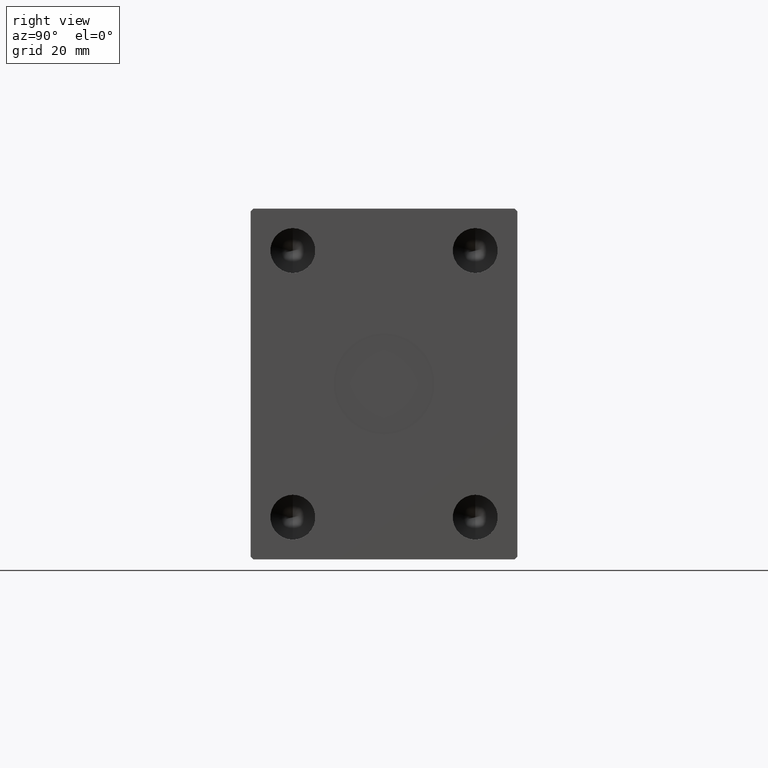
[diagram: clean part render]
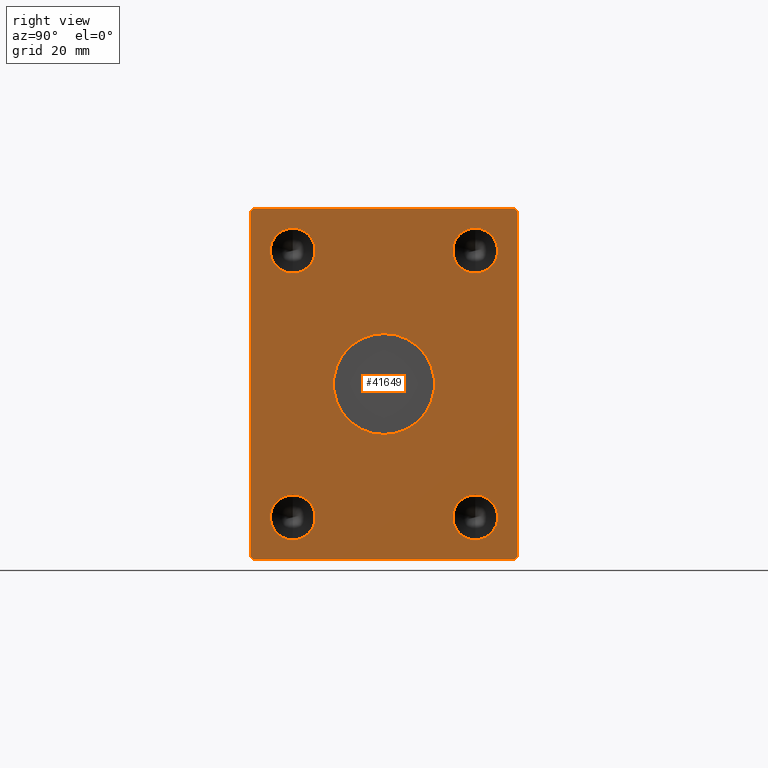
[diagram: same view with one face highlighted and labeled with its STEP entity id]
A machine part, right view. The second image highlights one B-rep face of the part: STEP entity #41649.
In plain terms, the highlighted planar face has unit normal (1, 0, 0).
Its self-contained STEP definition (entity closure, byte-faithful):
#145 = DIRECTION ( 'NONE',  ( 0.000000000000000000, 0.000000000000000000, -1.000000000000000000 ) ) ;
#185 = VECTOR ( 'NONE', #4170, 1000.000000000000114 ) ;
#339 = DIRECTION ( 'NONE',  ( 0.000000000000000000, 1.692413147294445970E-16, -1.000000000000000000 ) ) ;
#490 = EDGE_CURVE ( 'NONE', #10403, #14656, #17203, .T. ) ;
#745 = EDGE_LOOP ( 'NONE', ( #11526, #41956 ) ) ;
#862 = EDGE_LOOP ( 'NONE', ( #32121, #27961 ) ) ;
#1226 = EDGE_CURVE ( 'NONE', #29334, #19557, #43639, .T. ) ;
#1659 = ORIENTED_EDGE ( 'NONE', *, *, #4713, .F. ) ;
#1788 = CARTESIAN_POINT ( 'NONE',  ( 151.0000000000000000, -32.50000000000000000, 47.50000000000000000 ) ) ;
#2112 = FACE_BOUND ( 'NONE', #862, .T. ) ;
#2118 = ORIENTED_EDGE ( 'NONE', *, *, #14439, .F. ) ;
#2177 = LINE ( 'NONE', #5319, #34670 ) ;
#2380 = AXIS2_PLACEMENT_3D ( 'NONE', #9848, #23895, #20759 ) ;
#2577 = VERTEX_POINT ( 'NONE', #37458 ) ;
#2688 = EDGE_CURVE ( 'NONE', #38471, #29668, #17575, .T. ) ;
#2750 = AXIS2_PLACEMENT_3D ( 'NONE', #42973, #12408, #39625 ) ;
#2917 = AXIS2_PLACEMENT_3D ( 'NONE', #24696, #34974, #14444 ) ;
#3382 = VECTOR ( 'NONE', #4646, 1000.000000000000114 ) ;
#3405 = ORIENTED_EDGE ( 'NONE', *, *, #3587, .T. ) ;
#3415 = CIRCLE ( 'NONE', #21230, 7.999999999999992895 ) ;
#3587 = EDGE_CURVE ( 'NONE', #42573, #30382, #28057, .T. ) ;
#3740 = EDGE_CURVE ( 'NONE', #31430, #23911, #25791, .T. ) ;
#4093 = ORIENTED_EDGE ( 'NONE', *, *, #3740, .T. ) ;
#4139 = AXIS2_PLACEMENT_3D ( 'NONE', #17516, #34932, #4340 ) ;
#4170 = DIRECTION ( 'NONE',  ( 0.000000000000000000, -0.7071067811865474617, -0.7071067811865474617 ) ) ;
#4340 = DIRECTION ( 'NONE',  ( 0.000000000000000000, 0.000000000000000000, -1.000000000000000000 ) ) ;
#4490 = CARTESIAN_POINT ( 'NONE',  ( 151.0000000000000000, -46.50000000000001421, 62.49999999999997868 ) ) ;
#4646 = DIRECTION ( 'NONE',  ( 0.000000000000000000, -0.7071067811865474617, 0.7071067811865474617 ) ) ;
#4713 = EDGE_CURVE ( 'NONE', #19313, #2577, #38729, .T. ) ;
#5132 = CIRCLE ( 'NONE', #12290, 18.00000000000000000 ) ;
#5319 = CARTESIAN_POINT ( 'NONE',  ( 151.0000000000000000, 46.50000000000000000, 62.49999999999998579 ) ) ;
#5691 = FACE_BOUND ( 'NONE', #29865, .T. ) ;
#5838 = AXIS2_PLACEMENT_3D ( 'NONE', #41563, #38644, #11643 ) ;
#5854 = EDGE_CURVE ( 'NONE', #31029, #38471, #12160, .T. ) ;
#5938 = VECTOR ( 'NONE', #25754, 1000.000000000000114 ) ;
#6132 = CARTESIAN_POINT ( 'NONE',  ( 151.0000000000000000, 47.50000000000001421, -61.50000000000001421 ) ) ;
#6768 = EDGE_CURVE ( 'NONE', #19557, #29334, #5132, .T. ) ;
#8584 = CARTESIAN_POINT ( 'NONE',  ( 151.0000000000000000, -32.50000000000000000, 39.50000000000000711 ) ) ;
#8824 = ORIENTED_EDGE ( 'NONE', *, *, #15707, .F. ) ;
#9446 = CARTESIAN_POINT ( 'NONE',  ( 151.0000000000000000, -47.49999999999999289, -61.50000000000001421 ) ) ;
#9477 = PLANE ( 'NONE',  #2750 ) ;
#9482 = ORIENTED_EDGE ( 'NONE', *, *, #5854, .T. ) ;
#9633 = EDGE_CURVE ( 'NONE', #40493, #16050, #26645, .T. ) ;
#9762 = CARTESIAN_POINT ( 'NONE',  ( 151.0000000000000000, 0.000000000000000000, 0.000000000000000000 ) ) ;
#9848 = CARTESIAN_POINT ( 'NONE',  ( 151.0000000000000000, 32.50000000000000000, 47.50000000000000000 ) ) ;
#10403 = VERTEX_POINT ( 'NONE', #11024 ) ;
#10915 = LINE ( 'NONE', #38358, #3382 ) ;
#11024 = CARTESIAN_POINT ( 'NONE',  ( 151.0000000000000000, 32.50000000000000000, -55.49999999999999289 ) ) ;
#11045 = CIRCLE ( 'NONE', #36684, 8.000000000000000000 ) ;
#11079 = CARTESIAN_POINT ( 'NONE',  ( 151.0000000000000000, -32.50000000000000000, -55.50000000000000711 ) ) ;
#11337 = CARTESIAN_POINT ( 'NONE',  ( 151.0000000000000000, -46.50000000000000000, -62.50000000000001421 ) ) ;
#11419 = VERTEX_POINT ( 'NONE', #11079 ) ;
#11526 = ORIENTED_EDGE ( 'NONE', *, *, #6768, .F. ) ;
#11643 = DIRECTION ( 'NONE',  ( 0.000000000000000000, 0.000000000000000000, -1.000000000000000000 ) ) ;
#11929 = EDGE_CURVE ( 'NONE', #17381, #11419, #11045, .T. ) ;
#12160 = LINE ( 'NONE', #9446, #5938 ) ;
#12290 = AXIS2_PLACEMENT_3D ( 'NONE', #9762, #26949, #145 ) ;
#12408 = DIRECTION ( 'NONE',  ( 1.000000000000000000, 0.000000000000000000, 0.000000000000000000 ) ) ;
#13131 = EDGE_CURVE ( 'NONE', #29668, #31430, #42752, .T. ) ;
#14155 = AXIS2_PLACEMENT_3D ( 'NONE', #27780, #40955, #24417 ) ;
#14208 = LINE ( 'NONE', #31601, #32650 ) ;
#14250 = DIRECTION ( 'NONE',  ( 0.000000000000000000, 1.000000000000000000, 1.492235248152092278E-16 ) ) ;
#14439 = EDGE_CURVE ( 'NONE', #2577, #19313, #27548, .T. ) ;
#14444 = DIRECTION ( 'NONE',  ( 0.000000000000000000, 0.000000000000000000, -1.000000000000000000 ) ) ;
#14656 = VERTEX_POINT ( 'NONE', #38750 ) ;
#15317 = DIRECTION ( 'NONE',  ( 0.000000000000000000, -1.128275431529630729E-16, 1.000000000000000000 ) ) ;
#15707 = EDGE_CURVE ( 'NONE', #14656, #10403, #3415, .T. ) ;
#15743 = FACE_BOUND ( 'NONE', #19677, .T. ) ;
#16050 = VERTEX_POINT ( 'NONE', #18530 ) ;
#16912 = ORIENTED_EDGE ( 'NONE', *, *, #490, .F. ) ;
#17114 = CARTESIAN_POINT ( 'NONE',  ( 151.0000000000000000, 47.50000000000000000, 61.49999999999998579 ) ) ;
#17203 = CIRCLE ( 'NONE', #2917, 7.999999999999992895 ) ;
#17236 = AXIS2_PLACEMENT_3D ( 'NONE', #36295, #33379, #26022 ) ;
#17381 = VERTEX_POINT ( 'NONE', #27379 ) ;
#17516 = CARTESIAN_POINT ( 'NONE',  ( 151.0000000000000000, -32.50000000000000000, -47.50000000000000711 ) ) ;
#17575 = LINE ( 'NONE', #11337, #27993 ) ;
#17721 = EDGE_CURVE ( 'NONE', #16050, #40493, #31259, .T. ) ;
#18172 = ORIENTED_EDGE ( 'NONE', *, *, #19944, .T. ) ;
#18530 = CARTESIAN_POINT ( 'NONE',  ( 151.0000000000000000, 32.50000000000000000, 39.50000000000000711 ) ) ;
#18976 = DIRECTION ( 'NONE',  ( 1.000000000000000000, -0.000000000000000000, -0.000000000000000000 ) ) ;
#19223 = CARTESIAN_POINT ( 'NONE',  ( 151.0000000000000000, 0.000000000000000000, -18.00000000000000000 ) ) ;
#19313 = VERTEX_POINT ( 'NONE', #8584 ) ;
#19557 = VERTEX_POINT ( 'NONE', #19223 ) ;
#19677 = EDGE_LOOP ( 'NONE', ( #36685, #24249 ) ) ;
#19944 = EDGE_CURVE ( 'NONE', #30382, #31029, #14208, .T. ) ;
#20759 = DIRECTION ( 'NONE',  ( 0.000000000000000000, 0.000000000000000000, -1.000000000000000000 ) ) ;
#21230 = AXIS2_PLACEMENT_3D ( 'NONE', #25503, #43134, #22144 ) ;
#21869 = CARTESIAN_POINT ( 'NONE',  ( 151.0000000000000000, -32.50000000000000000, -47.50000000000000711 ) ) ;
#22144 = DIRECTION ( 'NONE',  ( 0.000000000000000000, 0.000000000000000000, -1.000000000000000000 ) ) ;
#22270 = DIRECTION ( 'NONE',  ( 0.000000000000000000, -1.000000000000000000, -7.461176240760460157E-17 ) ) ;
#22669 = CIRCLE ( 'NONE', #4139, 8.000000000000000000 ) ;
#23895 = DIRECTION ( 'NONE',  ( 1.000000000000000000, -0.000000000000000000, -0.000000000000000000 ) ) ;
#23905 = EDGE_LOOP ( 'NONE', ( #1659, #2118 ) ) ;
#23911 = VERTEX_POINT ( 'NONE', #17114 ) ;
#24010 = AXIS2_PLACEMENT_3D ( 'NONE', #1788, #18976, #29468 ) ;
#24249 = ORIENTED_EDGE ( 'NONE', *, *, #11929, .F. ) ;
#24417 = DIRECTION ( 'NONE',  ( 0.000000000000000000, 0.000000000000000000, -1.000000000000000000 ) ) ;
#24500 = CARTESIAN_POINT ( 'NONE',  ( 151.0000000000000000, -47.49999999999999289, -61.50000000000001421 ) ) ;
#24696 = CARTESIAN_POINT ( 'NONE',  ( 151.0000000000000000, 32.50000000000000000, -47.50000000000000000 ) ) ;
#25503 = CARTESIAN_POINT ( 'NONE',  ( 151.0000000000000000, 32.50000000000000000, -47.50000000000000000 ) ) ;
#25676 = DIRECTION ( 'NONE',  ( 0.000000000000000000, 0.000000000000000000, -1.000000000000000000 ) ) ;
#25749 = VERTEX_POINT ( 'NONE', #29112 ) ;
#25754 = DIRECTION ( 'NONE',  ( 0.000000000000000000, 0.7071067811865451302, -0.7071067811865500152 ) ) ;
#25791 = LINE ( 'NONE', #6132, #30856 ) ;
#26022 = DIRECTION ( 'NONE',  ( 0.000000000000000000, 0.000000000000000000, -1.000000000000000000 ) ) ;
#26078 = ORIENTED_EDGE ( 'NONE', *, *, #13131, .T. ) ;
#26645 = CIRCLE ( 'NONE', #2380, 7.999999999999992895 ) ;
#26949 = DIRECTION ( 'NONE',  ( 1.000000000000000000, 0.000000000000000000, 0.000000000000000000 ) ) ;
#27135 = CARTESIAN_POINT ( 'NONE',  ( 151.0000000000000000, 46.50000000000000000, -62.50000000000000000 ) ) ;
#27379 = CARTESIAN_POINT ( 'NONE',  ( 151.0000000000000000, -32.50000000000000000, -39.50000000000000711 ) ) ;
#27548 = CIRCLE ( 'NONE', #24010, 7.999999999999992895 ) ;
#27780 = CARTESIAN_POINT ( 'NONE',  ( 151.0000000000000000, 32.50000000000000000, 47.50000000000000000 ) ) ;
#27961 = ORIENTED_EDGE ( 'NONE', *, *, #9633, .F. ) ;
#27993 = VECTOR ( 'NONE', #14250, 1000.000000000000000 ) ;
#28057 = LINE ( 'NONE', #34526, #185 ) ;
#29112 = CARTESIAN_POINT ( 'NONE',  ( 151.0000000000000000, 46.50000000000000000, 62.49999999999998579 ) ) ;
#29334 = VERTEX_POINT ( 'NONE', #38828 ) ;
#29354 = FACE_BOUND ( 'NONE', #23905, .T. ) ;
#29468 = DIRECTION ( 'NONE',  ( 0.000000000000000000, 0.000000000000000000, -1.000000000000000000 ) ) ;
#29668 = VERTEX_POINT ( 'NONE', #27135 ) ;
#29797 = FACE_BOUND ( 'NONE', #745, .T. ) ;
#29865 = EDGE_LOOP ( 'NONE', ( #16912, #8824 ) ) ;
#30382 = VERTEX_POINT ( 'NONE', #34442 ) ;
#30856 = VECTOR ( 'NONE', #15317, 1000.000000000000000 ) ;
#31029 = VERTEX_POINT ( 'NONE', #24500 ) ;
#31259 = CIRCLE ( 'NONE', #14155, 7.999999999999992895 ) ;
#31430 = VERTEX_POINT ( 'NONE', #41098 ) ;
#31601 = CARTESIAN_POINT ( 'NONE',  ( 151.0000000000000000, -47.50000000000001421, 61.49999999999997868 ) ) ;
#31719 = VECTOR ( 'NONE', #42967, 999.9999999999998863 ) ;
#32121 = ORIENTED_EDGE ( 'NONE', *, *, #17721, .F. ) ;
#32650 = VECTOR ( 'NONE', #339, 1000.000000000000000 ) ;
#33379 = DIRECTION ( 'NONE',  ( 1.000000000000000000, -0.000000000000000000, -0.000000000000000000 ) ) ;
#34442 = CARTESIAN_POINT ( 'NONE',  ( 151.0000000000000000, -47.50000000000001421, 61.49999999999997868 ) ) ;
#34526 = CARTESIAN_POINT ( 'NONE',  ( 151.0000000000000000, -46.50000000000001421, 62.49999999999997868 ) ) ;
#34670 = VECTOR ( 'NONE', #22270, 1000.000000000000000 ) ;
#34932 = DIRECTION ( 'NONE',  ( 1.000000000000000000, -0.000000000000000000, -0.000000000000000000 ) ) ;
#34974 = DIRECTION ( 'NONE',  ( 1.000000000000000000, -0.000000000000000000, -0.000000000000000000 ) ) ;
#35351 = EDGE_CURVE ( 'NONE', #25749, #42573, #2177, .T. ) ;
#36295 = CARTESIAN_POINT ( 'NONE',  ( 151.0000000000000000, -32.50000000000000000, 47.50000000000000000 ) ) ;
#36483 = ORIENTED_EDGE ( 'NONE', *, *, #35351, .T. ) ;
#36684 = AXIS2_PLACEMENT_3D ( 'NONE', #21869, #42643, #25676 ) ;
#36685 = ORIENTED_EDGE ( 'NONE', *, *, #40162, .F. ) ;
#37458 = CARTESIAN_POINT ( 'NONE',  ( 151.0000000000000000, -32.50000000000000000, 55.49999999999999289 ) ) ;
#38358 = CARTESIAN_POINT ( 'NONE',  ( 151.0000000000000000, 47.50000000000000000, 61.49999999999998579 ) ) ;
#38434 = ORIENTED_EDGE ( 'NONE', *, *, #38582, .T. ) ;
#38440 = CARTESIAN_POINT ( 'NONE',  ( 151.0000000000000000, -46.50000000000000000, -62.50000000000001421 ) ) ;
#38471 = VERTEX_POINT ( 'NONE', #38440 ) ;
#38582 = EDGE_CURVE ( 'NONE', #23911, #25749, #10915, .T. ) ;
#38644 = DIRECTION ( 'NONE',  ( 1.000000000000000000, 0.000000000000000000, 0.000000000000000000 ) ) ;
#38729 = CIRCLE ( 'NONE', #17236, 7.999999999999992895 ) ;
#38750 = CARTESIAN_POINT ( 'NONE',  ( 151.0000000000000000, 32.50000000000000000, -39.50000000000000711 ) ) ;
#38828 = CARTESIAN_POINT ( 'NONE',  ( 151.0000000000000000, 2.204364238465235428E-15, 18.00000000000000000 ) ) ;
#39625 = DIRECTION ( 'NONE',  ( 0.000000000000000000, 0.000000000000000000, -1.000000000000000000 ) ) ;
#40162 = EDGE_CURVE ( 'NONE', #11419, #17381, #22669, .T. ) ;
#40493 = VERTEX_POINT ( 'NONE', #41577 ) ;
#40955 = DIRECTION ( 'NONE',  ( 1.000000000000000000, -0.000000000000000000, -0.000000000000000000 ) ) ;
#41098 = CARTESIAN_POINT ( 'NONE',  ( 151.0000000000000000, 47.50000000000001421, -61.50000000000001421 ) ) ;
#41362 = EDGE_LOOP ( 'NONE', ( #38434, #36483, #3405, #18172, #9482, #43985, #26078, #4093 ) ) ;
#41563 = CARTESIAN_POINT ( 'NONE',  ( 151.0000000000000000, 0.000000000000000000, 0.000000000000000000 ) ) ;
#41577 = CARTESIAN_POINT ( 'NONE',  ( 151.0000000000000000, 32.50000000000000000, 55.49999999999999289 ) ) ;
#41649 = ADVANCED_FACE ( 'NONE', ( #29797, #2112, #15743, #5691, #29354, #43196 ), #9477, .T. ) ;
#41956 = ORIENTED_EDGE ( 'NONE', *, *, #1226, .F. ) ;
#42527 = CARTESIAN_POINT ( 'NONE',  ( 151.0000000000000000, 46.50000000000000000, -62.50000000000000000 ) ) ;
#42573 = VERTEX_POINT ( 'NONE', #4490 ) ;
#42643 = DIRECTION ( 'NONE',  ( 1.000000000000000000, -0.000000000000000000, -0.000000000000000000 ) ) ;
#42752 = LINE ( 'NONE', #42527, #31719 ) ;
#42967 = DIRECTION ( 'NONE',  ( 0.000000000000000000, 0.7071067811865574537, 0.7071067811865376918 ) ) ;
#42973 = CARTESIAN_POINT ( 'NONE',  ( 151.0000000000000000, 0.000000000000000000, 0.000000000000000000 ) ) ;
#43134 = DIRECTION ( 'NONE',  ( 1.000000000000000000, -0.000000000000000000, -0.000000000000000000 ) ) ;
#43196 = FACE_OUTER_BOUND ( 'NONE', #41362, .T. ) ;
#43639 = CIRCLE ( 'NONE', #5838, 18.00000000000000000 ) ;
#43985 = ORIENTED_EDGE ( 'NONE', *, *, #2688, .T. ) ;